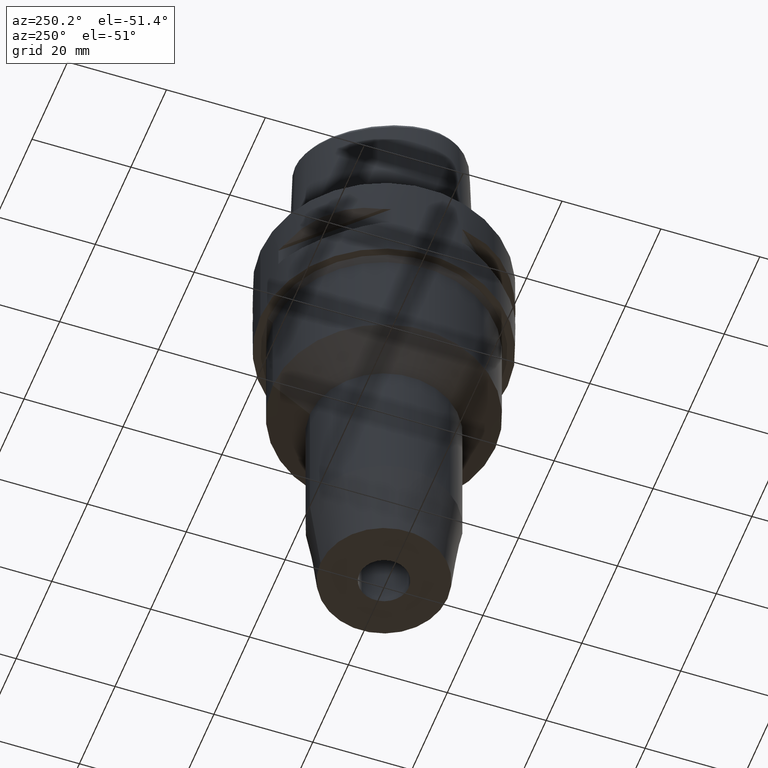
[diagram: clean part render]
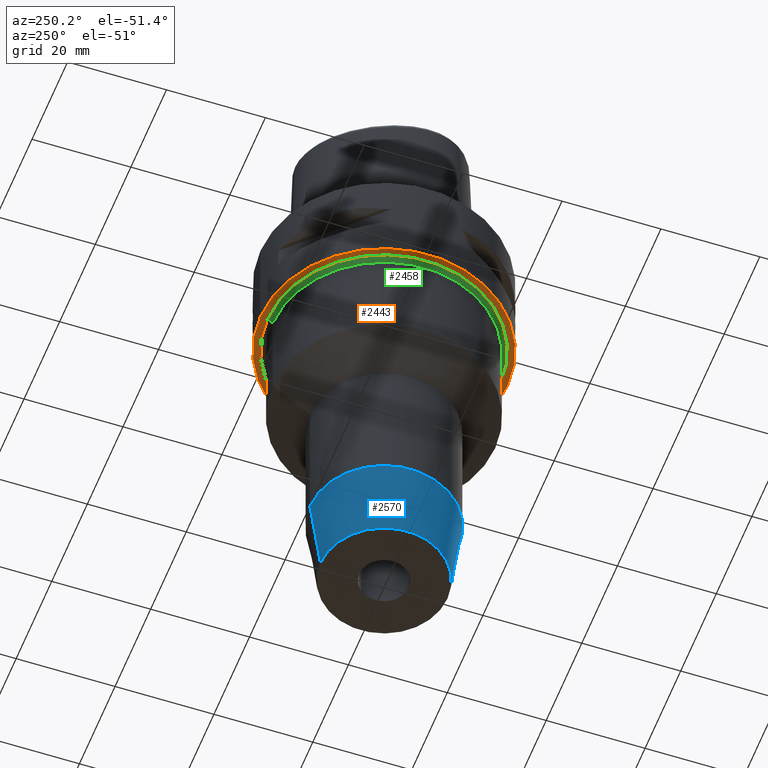
[diagram: same view with three faces highlighted in distinct colors, each labeled with its STEP entity id]
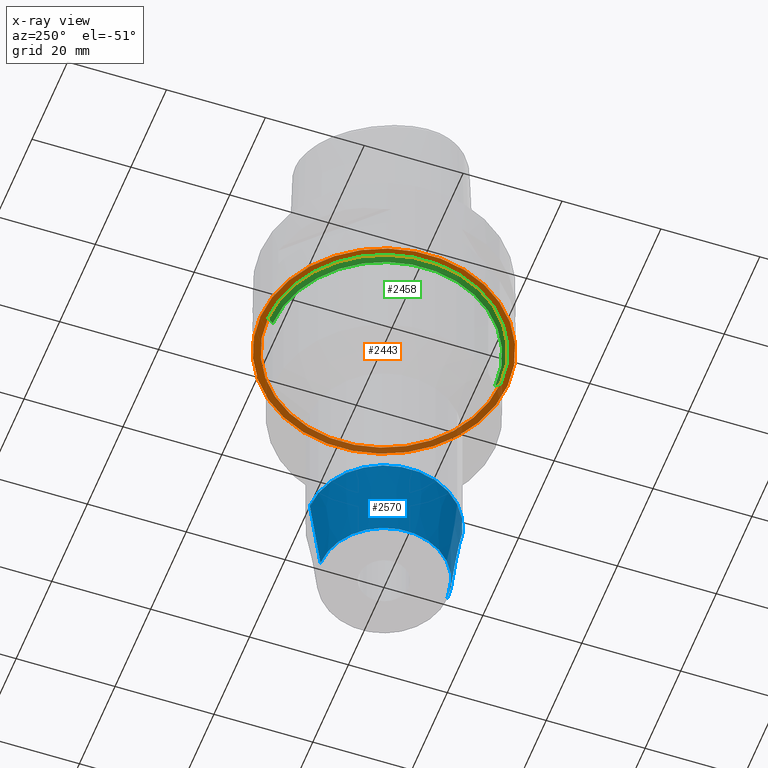
[diagram: x-ray of the same camera — body ghosted, the three highlighted faces saturated]
A machine part, auxiliary view with three faces highlighted in distinct colors.
The next image is the same camera in x-ray (body ghosted, the three faces saturated) — at least one of them is partly hidden behind the body in this view.
Their STEP definitions:

[orange] entity #2443 — the highlighted planar face has unit normal (0, 0, -1).
#490=CARTESIAN_POINT('',(0.E0,1.279755905109E-14,-2.E1));
#491=DIRECTION('',(0.E0,0.E0,1.E0));
#492=DIRECTION('',(0.E0,-1.E0,0.E0));
#493=AXIS2_PLACEMENT_3D('',#490,#491,#492);
#498=CARTESIAN_POINT('',(0.E0,1.279755905109E-14,-2.E1));
#499=DIRECTION('',(0.E0,0.E0,1.E0));
#500=DIRECTION('',(0.E0,1.E0,0.E0));
#501=AXIS2_PLACEMENT_3D('',#498,#499,#500);
#506=CARTESIAN_POINT('',(0.E0,0.E0,-2.E1));
#507=DIRECTION('',(0.E0,0.E0,-1.E0));
#508=DIRECTION('',(0.E0,-1.E0,0.E0));
#509=AXIS2_PLACEMENT_3D('',#506,#507,#508);
#514=CARTESIAN_POINT('',(0.E0,0.E0,-2.E1));
#515=DIRECTION('',(0.E0,0.E0,-1.E0));
#516=DIRECTION('',(0.E0,1.E0,0.E0));
#517=AXIS2_PLACEMENT_3D('',#514,#515,#516);
#1546=CARTESIAN_POINT('',(0.E0,2.5E1,-2.E1));
#1547=VERTEX_POINT('',#1546);
#1548=CARTESIAN_POINT('',(0.E0,-2.5E1,-2.E1));
#1549=VERTEX_POINT('',#1548);
#1602=CARTESIAN_POINT('',(0.E0,-2.35E1,-2.E1));
#1603=CARTESIAN_POINT('',(0.E0,2.35E1,-2.E1));
#1604=VERTEX_POINT('',#1602);
#1605=VERTEX_POINT('',#1603);
#2428=CARTESIAN_POINT('',(0.E0,0.E0,-2.E1));
#2429=DIRECTION('',(0.E0,0.E0,-1.E0));
#2430=DIRECTION('',(0.E0,-1.E0,0.E0));
#2431=AXIS2_PLACEMENT_3D('',#2428,#2429,#2430);
#2432=PLANE('',#2431);
#2433=ORIENTED_EDGE('',*,*,#2385,.T.);
#2434=ORIENTED_EDGE('',*,*,#2338,.T.);
#2435=EDGE_LOOP('',(#2433,#2434));
#2436=FACE_OUTER_BOUND('',#2435,.F.);
#2438=ORIENTED_EDGE('',*,*,#2437,.T.);
#2440=ORIENTED_EDGE('',*,*,#2439,.T.);
#2441=EDGE_LOOP('',(#2438,#2440));
#2442=FACE_BOUND('',#2441,.F.);
#494=CIRCLE('',#493,2.5E1);
#502=CIRCLE('',#501,2.5E1);
#510=CIRCLE('',#509,2.35E1);
#518=CIRCLE('',#517,2.35E1);
#2338=EDGE_CURVE('',#1547,#1549,#502,.T.);
#2385=EDGE_CURVE('',#1549,#1547,#494,.T.);
#2437=EDGE_CURVE('',#1604,#1605,#510,.T.);
#2439=EDGE_CURVE('',#1605,#1604,#518,.T.);
#2443=ADVANCED_FACE('',(#2436,#2442),#2432,.T.);

[blue] entity #2570 — the highlighted conical surface has half-angle 7.5 deg.
#626=CARTESIAN_POINT('',(0.E0,0.E0,-7.363494776413E1));
#627=DIRECTION('',(0.E0,0.E0,1.E0));
#628=DIRECTION('',(0.E0,1.E0,0.E0));
#629=AXIS2_PLACEMENT_3D('',#626,#627,#628);
#634=DIRECTION('',(0.E0,1.305261922200E-1,-9.914448613738E-1));
#635=VECTOR('',#634,1.650626562651E1);
#636=CARTESIAN_POINT('',(0.E0,-1.5E1,-7.363494776413E1));
#637=LINE('',#636,#635);
#641=DIRECTION('',(0.E0,-1.305261922200E-1,-9.914448613738E-1));
#642=VECTOR('',#641,1.650626562651E1);
#643=CARTESIAN_POINT('',(0.E0,1.5E1,-7.363494776413E1));
#644=LINE('',#643,#642);
#664=CARTESIAN_POINT('',(0.E0,0.E0,-9.E1));
#665=DIRECTION('',(0.E0,0.E0,1.E0));
#666=DIRECTION('',(0.E0,1.E0,0.E0));
#667=AXIS2_PLACEMENT_3D('',#664,#665,#666);
#1618=CARTESIAN_POINT('',(0.E0,1.5E1,-7.363494776413E1));
#1619=VERTEX_POINT('',#1618);
#1620=CARTESIAN_POINT('',(0.E0,-1.5E1,-7.363494776413E1));
#1621=VERTEX_POINT('',#1620);
#1622=CARTESIAN_POINT('',(0.E0,1.28455E1,-9.E1));
#1623=VERTEX_POINT('',#1622);
#1624=CARTESIAN_POINT('',(0.E0,-1.28455E1,-9.E1));
#1625=VERTEX_POINT('',#1624);
#2556=CARTESIAN_POINT('',(0.E0,0.E0,-8.181747388207E1));
#2557=DIRECTION('',(0.E0,0.E0,1.E0));
#2558=DIRECTION('',(0.E0,1.E0,0.E0));
#2559=AXIS2_PLACEMENT_3D('',#2556,#2557,#2558);
#2560=CONICAL_SURFACE('',#2559,1.392275E1,7.5E0);
#2562=ORIENTED_EDGE('',*,*,#2561,.F.);
#2563=ORIENTED_EDGE('',*,*,#2551,.T.);
#2565=ORIENTED_EDGE('',*,*,#2564,.T.);
#2567=ORIENTED_EDGE('',*,*,#2566,.F.);
#2568=EDGE_LOOP('',(#2562,#2563,#2565,#2567));
#2569=FACE_OUTER_BOUND('',#2568,.F.);
#630=CIRCLE('',#629,1.5E1);
#668=CIRCLE('',#667,1.28455E1);
#2551=EDGE_CURVE('',#1619,#1621,#630,.T.);
#2561=EDGE_CURVE('',#1619,#1623,#644,.T.);
#2564=EDGE_CURVE('',#1621,#1625,#637,.T.);
#2566=EDGE_CURVE('',#1623,#1625,#668,.T.);
#2570=ADVANCED_FACE('',(#2569),#2560,.T.);

[green] entity #2458 — the highlighted conical surface has half-angle 45 deg.
#506=CARTESIAN_POINT('',(0.E0,0.E0,-2.E1));
#507=DIRECTION('',(0.E0,0.E0,-1.E0));
#508=DIRECTION('',(0.E0,-1.E0,0.E0));
#509=AXIS2_PLACEMENT_3D('',#506,#507,#508);
#522=DIRECTION('',(0.E0,7.071067811866E-1,-7.071067811865E-1));
#523=VECTOR('',#522,1.414213562373E0);
#524=CARTESIAN_POINT('',(0.E0,-2.35E1,-2.E1));
#525=LINE('',#524,#523);
#529=CARTESIAN_POINT('',(0.E0,0.E0,-2.1E1));
#530=DIRECTION('',(0.E0,0.E0,-1.E0));
#531=DIRECTION('',(0.E0,-1.E0,0.E0));
#532=AXIS2_PLACEMENT_3D('',#529,#530,#531);
#537=DIRECTION('',(0.E0,-7.071067811865E-1,-7.071067811866E-1));
#538=VECTOR('',#537,1.414213562373E0);
#539=CARTESIAN_POINT('',(0.E0,2.35E1,-2.E1));
#540=LINE('',#539,#538);
#1602=CARTESIAN_POINT('',(0.E0,-2.35E1,-2.E1));
#1603=CARTESIAN_POINT('',(0.E0,2.35E1,-2.E1));
#1604=VERTEX_POINT('',#1602);
#1605=VERTEX_POINT('',#1603);
#1606=CARTESIAN_POINT('',(0.E0,2.25E1,-2.1E1));
#1607=VERTEX_POINT('',#1606);
#1608=CARTESIAN_POINT('',(0.E0,-2.25E1,-2.1E1));
#1609=VERTEX_POINT('',#1608);
#2444=CARTESIAN_POINT('',(0.E0,0.E0,-2.05E1));
#2445=DIRECTION('',(0.E0,0.E0,1.E0));
#2446=DIRECTION('',(0.E0,1.E0,0.E0));
#2447=AXIS2_PLACEMENT_3D('',#2444,#2445,#2446);
#2448=CONICAL_SURFACE('',#2447,2.3E1,4.5E1);
#2450=ORIENTED_EDGE('',*,*,#2449,.F.);
#2451=ORIENTED_EDGE('',*,*,#2437,.F.);
#2453=ORIENTED_EDGE('',*,*,#2452,.T.);
#2455=ORIENTED_EDGE('',*,*,#2454,.T.);
#2456=EDGE_LOOP('',(#2450,#2451,#2453,#2455));
#2457=FACE_OUTER_BOUND('',#2456,.F.);
#510=CIRCLE('',#509,2.35E1);
#533=CIRCLE('',#532,2.25E1);
#2437=EDGE_CURVE('',#1604,#1605,#510,.T.);
#2449=EDGE_CURVE('',#1605,#1607,#540,.T.);
#2452=EDGE_CURVE('',#1604,#1609,#525,.T.);
#2454=EDGE_CURVE('',#1609,#1607,#533,.T.);
#2458=ADVANCED_FACE('',(#2457),#2448,.T.);